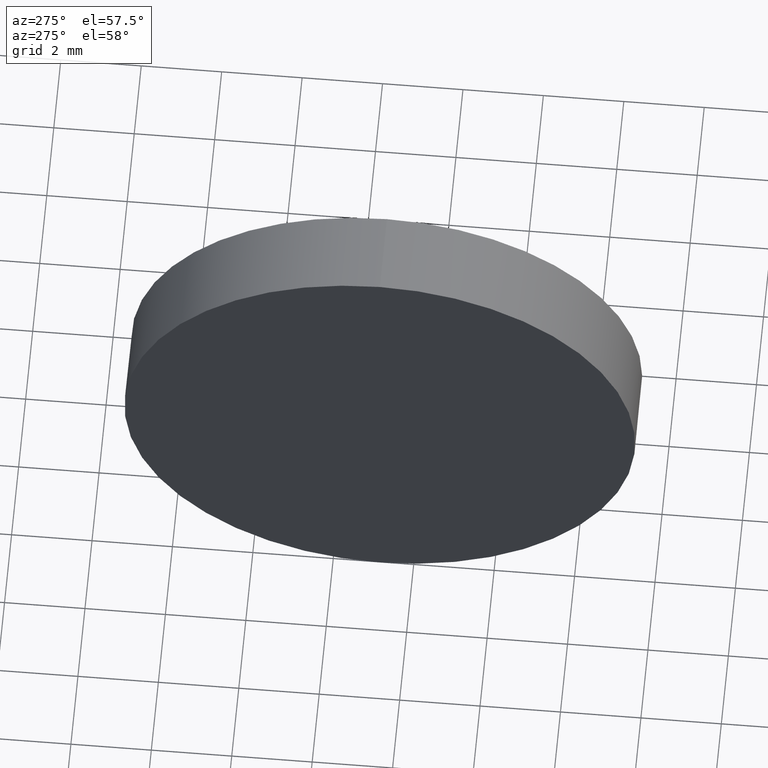
[diagram: clean part render]
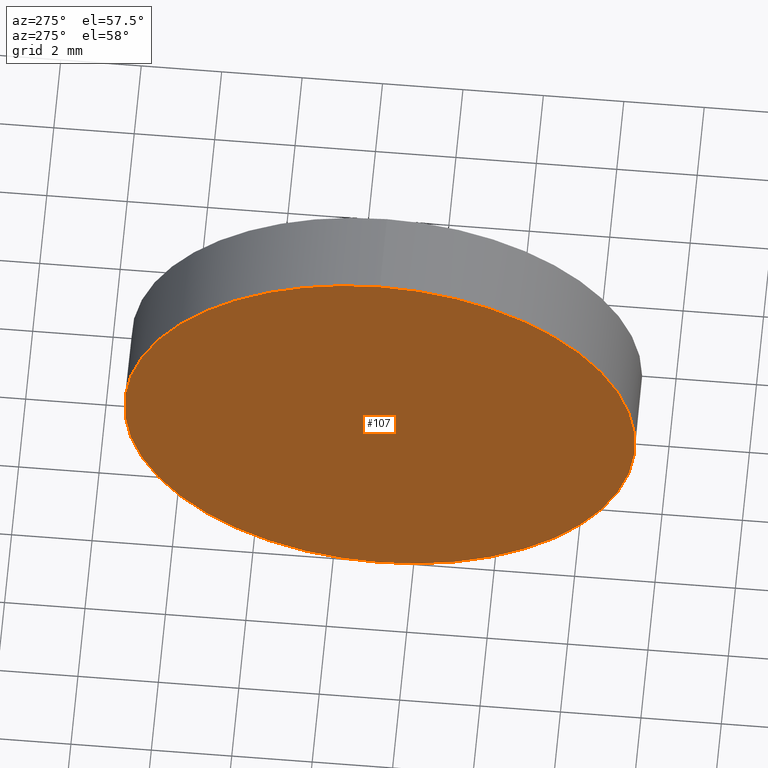
[diagram: same view with one face highlighted and labeled with its STEP entity id]
A machine part, auxiliary view. The second image highlights one B-rep face of the part: STEP entity #107.
In plain terms, the highlighted planar face has unit normal (1, 0, 0).
Its self-contained STEP definition (entity closure, byte-faithful):
#12 = CARTESIAN_POINT ( 'NONE',  ( 551.8125703644948300, 54.82747999081997400, 6.350000000000001400 ) ) ;
#15 = ORIENTED_EDGE ( 'NONE', *, *, #45, .T. ) ;
#20 = ORIENTED_EDGE ( 'NONE', *, *, #115, .T. ) ;
#25 = AXIS2_PLACEMENT_3D ( 'NONE', #152, #116, #93 ) ;
#27 = EDGE_LOOP ( 'NONE', ( #15, #20 ) ) ;
#35 = CARTESIAN_POINT ( 'NONE',  ( 551.8125703644948300, 54.82747999081997400, 0.0000000000000000000 ) ) ;
#45 = EDGE_CURVE ( 'NONE', #68, #57, #157, .T. ) ;
#52 = DIRECTION ( 'NONE',  ( -1.000000000000000000, -0.0000000000000000000, -0.0000000000000000000 ) ) ;
#54 = DIRECTION ( 'NONE',  ( 0.0000000000000000000, 0.0000000000000000000, 1.000000000000000000 ) ) ;
#57 = VERTEX_POINT ( 'NONE', #112 ) ;
#66 = PLANE ( 'NONE',  #104 ) ;
#68 = VERTEX_POINT ( 'NONE', #12 ) ;
#88 = CIRCLE ( 'NONE', #178, 6.350000000000001400 ) ;
#93 = DIRECTION ( 'NONE',  ( 0.0000000000000000000, 0.0000000000000000000, 1.000000000000000000 ) ) ;
#103 = DIRECTION ( 'NONE',  ( 1.000000000000000000, 0.0000000000000000000, 0.0000000000000000000 ) ) ;
#104 = AXIS2_PLACEMENT_3D ( 'NONE', #159, #103, #144 ) ;
#107 = ADVANCED_FACE ( 'NONE', ( #151 ), #66, .F. ) ;
#112 = CARTESIAN_POINT ( 'NONE',  ( 551.8125703644948300, 54.82747999081997400, -6.350000000000001400 ) ) ;
#115 = EDGE_CURVE ( 'NONE', #57, #68, #88, .T. ) ;
#116 = DIRECTION ( 'NONE',  ( -1.000000000000000000, -0.0000000000000000000, -0.0000000000000000000 ) ) ;
#144 = DIRECTION ( 'NONE',  ( 0.0000000000000000000, 0.0000000000000000000, -1.000000000000000000 ) ) ;
#151 = FACE_OUTER_BOUND ( 'NONE', #27, .T. ) ;
#152 = CARTESIAN_POINT ( 'NONE',  ( 551.8125703644948300, 54.82747999081997400, 0.0000000000000000000 ) ) ;
#157 = CIRCLE ( 'NONE', #25, 6.350000000000001400 ) ;
#159 = CARTESIAN_POINT ( 'NONE',  ( 551.8125703644948300, 54.82747999081997400, 0.0000000000000000000 ) ) ;
#178 = AXIS2_PLACEMENT_3D ( 'NONE', #35, #52, #54 ) ;